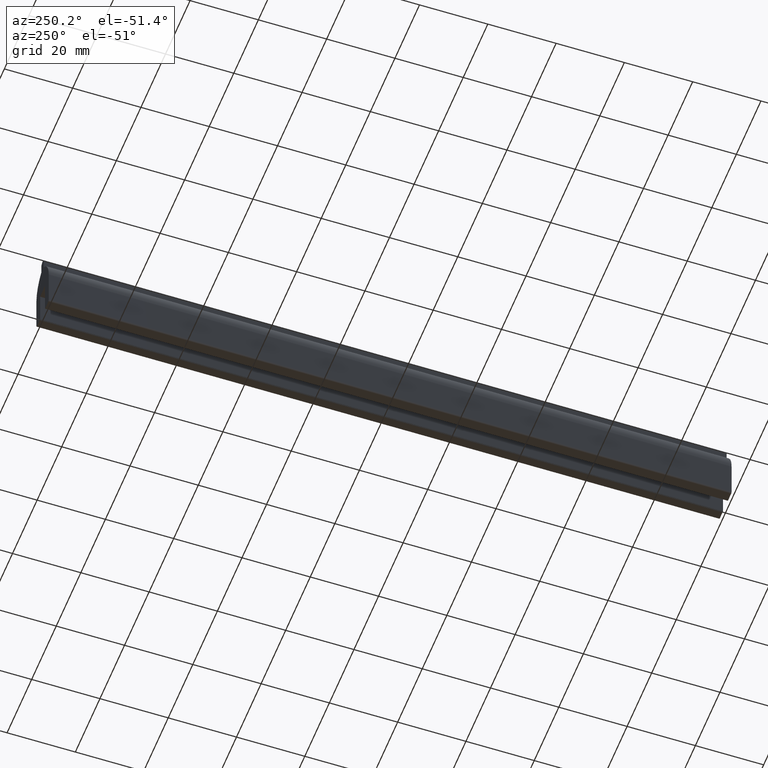
[diagram: clean part render]
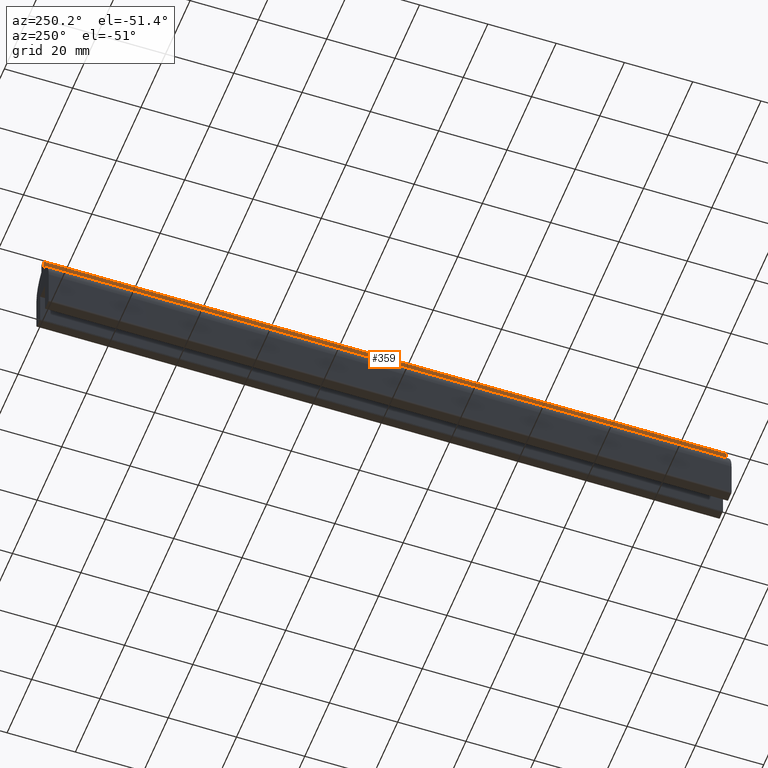
[diagram: same view with one face highlighted and labeled with its STEP entity id]
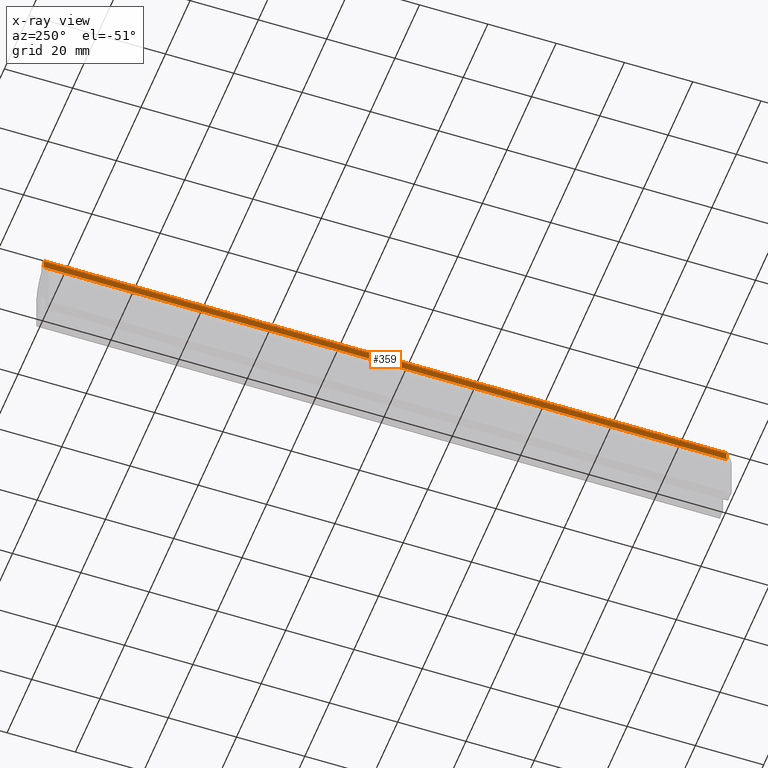
[diagram: x-ray of the same camera — body ghosted, the highlighted face saturated]
A machine part, auxiliary view. The second image highlights one B-rep face of the part: STEP entity #359.
The next image is the same camera in x-ray: the body ghosted, the highlighted face saturated — about 0% of this face is hidden behind the body in this view.
In plain terms, the highlighted face is a freeform B-spline surface patch.
Its self-contained STEP definition (entity closure, byte-faithful):
#49=CARTESIAN_POINT('',(-0.999999999999989,0.0,-3.500000000000000));
#50=VERTEX_POINT('',#49);
#167=CARTESIAN_POINT('',(-1.0,0.0,-1.0));
#168=VERTEX_POINT('',#167);
#184=CARTESIAN_POINT('',(-1.0,0.0,-1.0));
#185=CARTESIAN_POINT('',(-0.999999999999989,0.0,-3.500000000000000));
#186=QUASI_UNIFORM_CURVE('',1,(#184,#185),.UNSPECIFIED.,.F.,.U.);
#187=EDGE_CURVE('',#168,#50,#186,.T.);
#197=CARTESIAN_POINT('',(-0.999999999999989,200.0,-3.500000000000000));
#198=VERTEX_POINT('',#197);
#214=CARTESIAN_POINT('',(-1.0,200.0,-1.0));
#215=VERTEX_POINT('',#214);
#216=CARTESIAN_POINT('',(-1.0,200.0,-1.0));
#217=CARTESIAN_POINT('',(-0.999999999999989,200.0,-3.500000000000000));
#218=QUASI_UNIFORM_CURVE('',1,(#216,#217),.UNSPECIFIED.,.F.,.U.);
#219=EDGE_CURVE('',#215,#198,#218,.T.);
#340=CARTESIAN_POINT('',(-0.999999999999989,-9.989999612361194,-3.624874995154515));
#341=CARTESIAN_POINT('',(-0.999999999999989,-9.989999612361194,-0.875124937790260));
#342=CARTESIAN_POINT('',(-0.999999999999989,209.990004976779200,-3.624874995154515));
#343=CARTESIAN_POINT('',(-0.999999999999989,209.990004976779200,-0.875124937790260));
#344=B_SPLINE_SURFACE_WITH_KNOTS('',1,1,((#340,#342),(#341,#343)),.UNSPECIFIED.,.F.,.F.,.U.,(2,2),(2,2),(0.0,2.749750057364256),(0.0,219.980004589140410),.UNSPECIFIED.);
#345=ORIENTED_EDGE('',*,*,#187,.F.);
#346=CARTESIAN_POINT('',(-1.0,200.0,-1.0));
#347=CARTESIAN_POINT('',(-1.0,0.0,-1.0));
#348=QUASI_UNIFORM_CURVE('',1,(#346,#347),.UNSPECIFIED.,.F.,.U.);
#349=EDGE_CURVE('',#215,#168,#348,.T.);
#350=ORIENTED_EDGE('',*,*,#349,.F.);
#351=ORIENTED_EDGE('',*,*,#219,.T.);
#352=CARTESIAN_POINT('',(-0.999999999999989,200.0,-3.500000000000000));
#353=CARTESIAN_POINT('',(-0.999999999999989,0.0,-3.500000000000000));
#354=QUASI_UNIFORM_CURVE('',1,(#352,#353),.UNSPECIFIED.,.F.,.U.);
#355=EDGE_CURVE('',#198,#50,#354,.T.);
#356=ORIENTED_EDGE('',*,*,#355,.T.);
#357=EDGE_LOOP('',(#345,#350,#351,#356));
#358=FACE_OUTER_BOUND('',#357,.T.);
#359=ADVANCED_FACE('',(#358),#344,.T.);